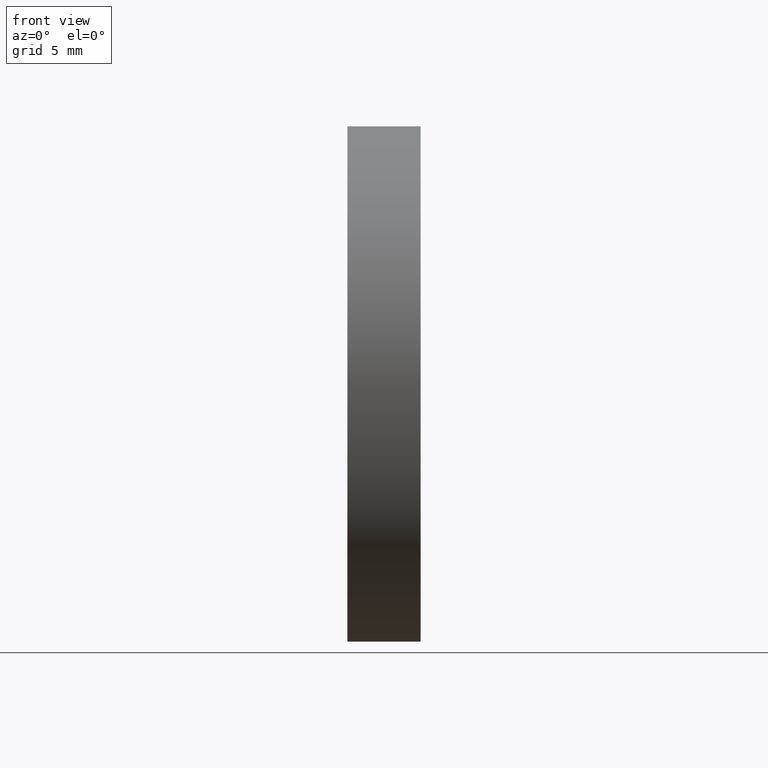
[diagram: clean part render]
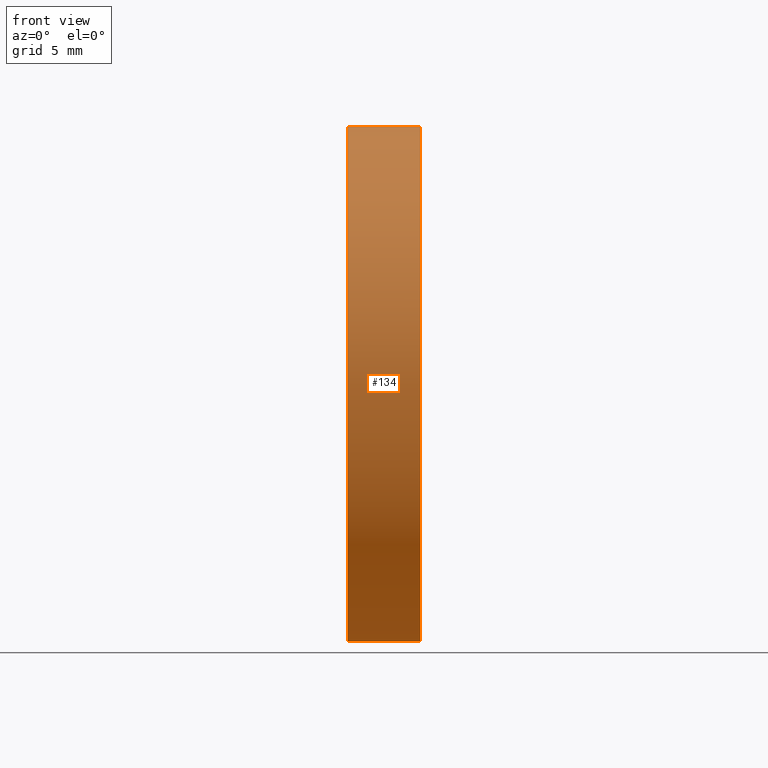
[diagram: same view with one face highlighted and labeled with its STEP entity id]
A machine part, front view. The second image highlights one B-rep face of the part: STEP entity #134.
In plain terms, the highlighted cylindrical surface (partial cylindrical patch) has radius 15 mm, axis along (1, -0, -0).
Its self-contained STEP definition (entity closure, byte-faithful):
#15 = CARTESIAN_POINT ( 'NONE',  ( -4.269999999999997797, 0.000000000000000000, -15.00000000000000355 ) ) ;
#19 = AXIS2_PLACEMENT_3D ( 'NONE', #119, #55, #133 ) ;
#20 = EDGE_CURVE ( 'NONE', #85, #194, #190, .T. ) ;
#30 = CARTESIAN_POINT ( 'NONE',  ( 0.000000000000000000, 0.000000000000000000, -15.00000000000000000 ) ) ;
#35 = ORIENTED_EDGE ( 'NONE', *, *, #42, .F. ) ;
#42 = EDGE_CURVE ( 'NONE', #194, #67, #72, .T. ) ;
#49 = VECTOR ( 'NONE', #198, 1000.000000000000000 ) ;
#55 = DIRECTION ( 'NONE',  ( 1.000000000000000000, -0.000000000000000000, -0.000000000000000000 ) ) ;
#60 = CARTESIAN_POINT ( 'NONE',  ( 0.000000000000000000, 0.000000000000000000, 0.000000000000000000 ) ) ;
#67 = VERTEX_POINT ( 'NONE', #30 ) ;
#69 = DIRECTION ( 'NONE',  ( 0.000000000000000000, 0.000000000000000000, -1.000000000000000000 ) ) ;
#70 = CARTESIAN_POINT ( 'NONE',  ( 0.000000000000000000, 0.000000000000000000, 0.000000000000000000 ) ) ;
#72 = CIRCLE ( 'NONE', #145, 15.00000000000000000 ) ;
#73 = CARTESIAN_POINT ( 'NONE',  ( -4.269999999999997797, 1.836970198721030378E-15, 15.00000000000000355 ) ) ;
#79 = VECTOR ( 'NONE', #108, 1000.000000000000000 ) ;
#85 = VERTEX_POINT ( 'NONE', #73 ) ;
#95 = CYLINDRICAL_SURFACE ( 'NONE', #143, 15.00000000000000000 ) ;
#96 = EDGE_CURVE ( 'NONE', #116, #67, #157, .T. ) ;
#101 = ORIENTED_EDGE ( 'NONE', *, *, #192, .T. ) ;
#108 = DIRECTION ( 'NONE',  ( 1.000000000000000000, -0.000000000000000000, -0.000000000000000000 ) ) ;
#114 = EDGE_LOOP ( 'NONE', ( #130, #101, #146, #35 ) ) ;
#116 = VERTEX_POINT ( 'NONE', #15 ) ;
#117 = CIRCLE ( 'NONE', #19, 15.00000000000000000 ) ;
#119 = CARTESIAN_POINT ( 'NONE',  ( -4.269999999999999574, 0.000000000000000000, 0.000000000000000000 ) ) ;
#123 = DIRECTION ( 'NONE',  ( 1.000000000000000000, -0.000000000000000000, -0.000000000000000000 ) ) ;
#125 = FACE_OUTER_BOUND ( 'NONE', #114, .T. ) ;
#130 = ORIENTED_EDGE ( 'NONE', *, *, #20, .F. ) ;
#133 = DIRECTION ( 'NONE',  ( 0.000000000000000000, 0.000000000000000000, -1.000000000000000000 ) ) ;
#134 = ADVANCED_FACE ( 'NONE', ( #125 ), #95, .T. ) ;
#143 = AXIS2_PLACEMENT_3D ( 'NONE', #70, #169, #69 ) ;
#145 = AXIS2_PLACEMENT_3D ( 'NONE', #60, #123, #188 ) ;
#146 = ORIENTED_EDGE ( 'NONE', *, *, #96, .T. ) ;
#157 = LINE ( 'NONE', #201, #79 ) ;
#168 = CARTESIAN_POINT ( 'NONE',  ( 0.000000000000000000, 1.836970198721029589E-15, 15.00000000000000000 ) ) ;
#169 = DIRECTION ( 'NONE',  ( 1.000000000000000000, -0.000000000000000000, -0.000000000000000000 ) ) ;
#175 = CARTESIAN_POINT ( 'NONE',  ( 0.000000000000000000, 1.836970198721029589E-15, 15.00000000000000000 ) ) ;
#188 = DIRECTION ( 'NONE',  ( 0.000000000000000000, 0.000000000000000000, -1.000000000000000000 ) ) ;
#190 = LINE ( 'NONE', #175, #49 ) ;
#192 = EDGE_CURVE ( 'NONE', #85, #116, #117, .T. ) ;
#194 = VERTEX_POINT ( 'NONE', #168 ) ;
#198 = DIRECTION ( 'NONE',  ( 1.000000000000000000, -0.000000000000000000, -0.000000000000000000 ) ) ;
#201 = CARTESIAN_POINT ( 'NONE',  ( 0.000000000000000000, 0.000000000000000000, -15.00000000000000000 ) ) ;